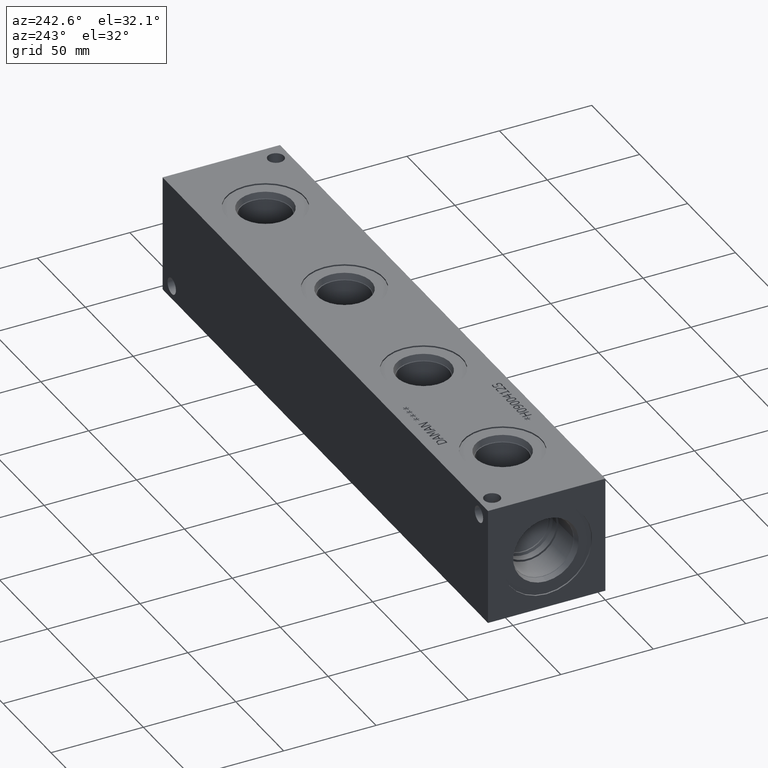
[diagram: clean part render]
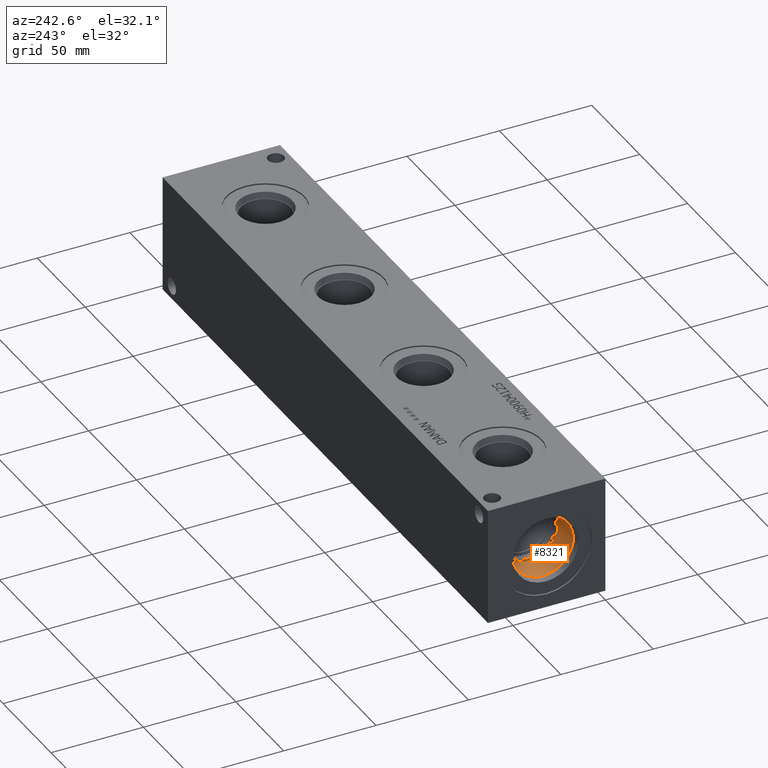
[diagram: same view with one face highlighted and labeled with its STEP entity id]
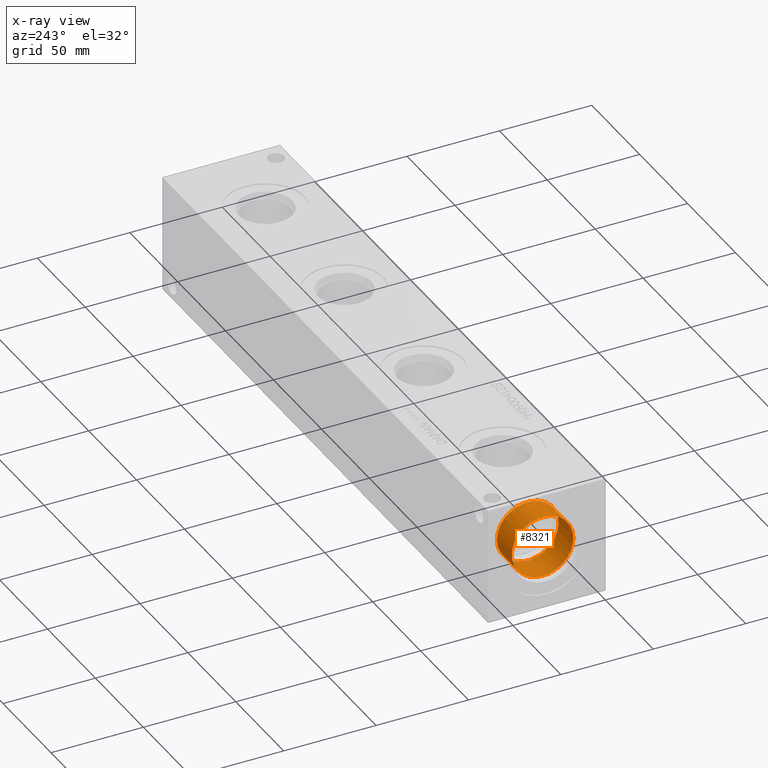
[diagram: x-ray of the same camera — body ghosted, the highlighted face saturated]
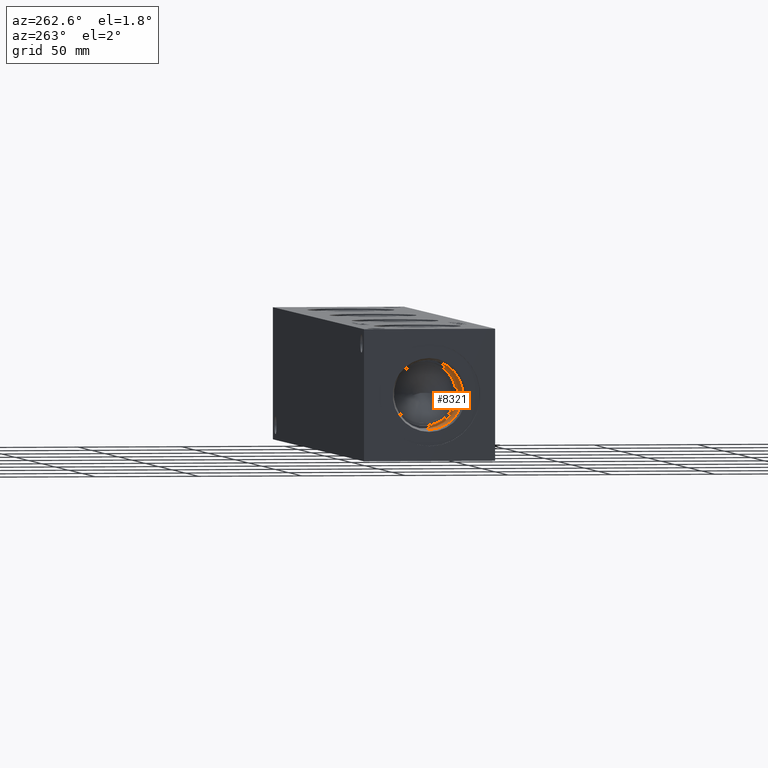
[diagram: same view with one face highlighted and labeled with its STEP entity id]
A machine part, auxiliary view. The second image highlights one B-rep face of the part: STEP entity #8321.
The next image is the same camera in x-ray: the body ghosted, the highlighted face saturated — about 0% of this face is hidden behind the body in this view.
A second angle (auxiliary view) of the same face is appended — the face is thin or edge-on in the first view.
In plain terms, the highlighted cylindrical surface (bore or boss wall) has radius 16.67 mm, axis along (-1, 0, 0).
Its self-contained STEP definition (entity closure, byte-faithful):
#42=CYLINDRICAL_SURFACE('',#8725,16.67);
#176=CIRCLE('',#8722,16.67);
#177=CIRCLE('',#8723,16.67);
#179=CIRCLE('',#8726,16.67);
#180=CIRCLE('',#8727,16.67);
#1020=FACE_OUTER_BOUND('',#1488,.T.);
#1488=EDGE_LOOP('',(#6908,#6909,#6910,#6911,#6912,#6913));
#2286=LINE('',#14067,#3040);
#3040=VECTOR('',#10247,16.67);
#3742=VERTEX_POINT('',#14057);
#3743=VERTEX_POINT('',#14058);
#3745=VERTEX_POINT('',#14064);
#3746=VERTEX_POINT('',#14065);
#4831=EDGE_CURVE('',#3742,#3743,#176,.T.);
#4832=EDGE_CURVE('',#3743,#3742,#177,.T.);
#4834=EDGE_CURVE('',#3745,#3746,#179,.T.);
#4835=EDGE_CURVE('',#3745,#3743,#2286,.T.);
#4836=EDGE_CURVE('',#3746,#3745,#180,.T.);
#6908=ORIENTED_EDGE('',*,*,#4834,.F.);
#6909=ORIENTED_EDGE('',*,*,#4835,.T.);
#6910=ORIENTED_EDGE('',*,*,#4831,.F.);
#6911=ORIENTED_EDGE('',*,*,#4832,.F.);
#6912=ORIENTED_EDGE('',*,*,#4835,.F.);
#6913=ORIENTED_EDGE('',*,*,#4836,.F.);
#8321=ADVANCED_FACE('',(#1020),#42,.F.);
#8722=AXIS2_PLACEMENT_3D('',#14059,#10237,#10238);
#8723=AXIS2_PLACEMENT_3D('',#14060,#10239,#10240);
#8725=AXIS2_PLACEMENT_3D('',#14063,#10243,#10244);
#8726=AXIS2_PLACEMENT_3D('',#14066,#10245,#10246);
#8727=AXIS2_PLACEMENT_3D('',#14068,#10248,#10249);
#10237=DIRECTION('center_axis',(-1.,0.,0.));
#10238=DIRECTION('ref_axis',(0.,1.,0.));
#10239=DIRECTION('center_axis',(-1.,0.,0.));
#10240=DIRECTION('ref_axis',(0.,1.,0.));
#10243=DIRECTION('center_axis',(-1.,0.,0.));
#10244=DIRECTION('ref_axis',(0.,1.,0.));
#10245=DIRECTION('center_axis',(1.,0.,0.));
#10246=DIRECTION('ref_axis',(0.,1.,0.));
#10247=DIRECTION('',(1.,0.,0.));
#10248=DIRECTION('center_axis',(1.,0.,0.));
#10249=DIRECTION('ref_axis',(0.,1.,0.));
#14057=CARTESIAN_POINT('',(19.8374,48.42,31.75));
#14058=CARTESIAN_POINT('',(19.8374,15.08,31.75));
#14059=CARTESIAN_POINT('Origin',(19.8374,31.75,31.75));
#14060=CARTESIAN_POINT('Origin',(19.8374,31.75,31.75));
#14063=CARTESIAN_POINT('Origin',(9.9187,31.75,31.75));
#14064=CARTESIAN_POINT('',(4.2723,15.08,31.75));
#14065=CARTESIAN_POINT('',(4.2723,31.75,15.08));
#14066=CARTESIAN_POINT('Origin',(4.2723,31.75,31.75));
#14067=CARTESIAN_POINT('',(9.9187,15.08,31.75));
#14068=CARTESIAN_POINT('Origin',(4.2723,31.75,31.75));